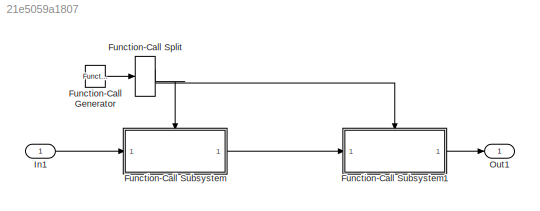
MODEL slx_21e5059a1807
KIND model
CONFIG AbsTol = auto
CONFIG EnableMultiTasking = off
CONFIG FixedStep = 0.200000
CONFIG MaxStep = auto
CONFIG MinStep = auto
CONFIG RelTol = 1e-3
CONFIG SampleTimeConstraint = Unconstrained
CONFIG Solver = FixedStepDiscrete
CONFIG SolverName = FixedStepDiscrete
CONFIG StartTime = 0.0
CONFIG StopTime = 19.8
BLOCK [Reference] Function-Call Generator  REF=simulink/Ports &
Subsystems/Function-Call
Generator
  Ports = [0, 1]
  SourceBlock = simulink/Ports &\nSubsystems/Function-Call\nGenerator
  SourceProductBaseCode = SL
  SourceProductName = Simulink
  SourceType = Function-Call Generator
BLOCK [FunctionCallSplit] Function-Call Split
  NumOutputPorts = 2
  Ports = [1, 2]
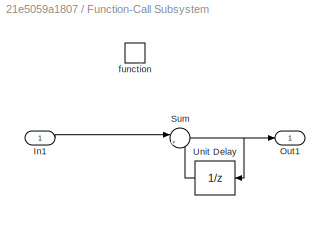
BLOCK [SubSystem] Function-Call Subsystem
  Ports = [1, 1, 0, 1]
  RequestExecContextInheritance = off
  TreatAsAtomicUnit = on
  Variant = off
BLOCK [Inport] Function-Call Subsystem/In1
  IconDisplay = Port number
BLOCK [Outport] Function-Call Subsystem/Out1
  IconDisplay = Port number
BLOCK [Sum] Function-Call Subsystem/Sum
  IconShape = round
  InputSameDT = off
  Inputs = |++
  OutDataTypeStr = Inherit: Inherit via internal rule
  Ports = [2, 1]
  SaturateOnIntegerOverflow = off
BLOCK [UnitDelay] Function-Call Subsystem/Unit Delay
  InputProcessing = Elements as channels (sample based)
  SampleTime = -1
BLOCK [TriggerPort] Function-Call Subsystem/function
  Ports = []
  StatesWhenEnabling = held
  TriggerType = function-call
  VariantControl = Variant
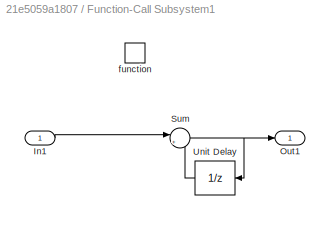
BLOCK [SubSystem] Function-Call Subsystem1
  Ports = [1, 1, 0, 1]
  RequestExecContextInheritance = off
  TreatAsAtomicUnit = on
  Variant = off
BLOCK [Inport] Function-Call Subsystem1/In1
  IconDisplay = Port number
BLOCK [Outport] Function-Call Subsystem1/Out1
  IconDisplay = Port number
BLOCK [Sum] Function-Call Subsystem1/Sum
  IconShape = round
  InputSameDT = off
  Inputs = |++
  OutDataTypeStr = Inherit: Inherit via internal rule
  Ports = [2, 1]
  SaturateOnIntegerOverflow = off
BLOCK [UnitDelay] Function-Call Subsystem1/Unit Delay
  InputProcessing = Elements as channels (sample based)
  SampleTime = -1
BLOCK [TriggerPort] Function-Call Subsystem1/function
  Ports = []
  StatesWhenEnabling = held
  TriggerType = function-call
  VariantControl = Variant
BLOCK [Inport] In1
  IconDisplay = Port number
BLOCK [Outport] Out1
  IconDisplay = Port number
LINE Function-Call Generator:1 -> Function-Call Split:1
LINE Function-Call Split:1 -> Function-Call Subsystem:trigger
LINE Function-Call Split:2 -> Function-Call Subsystem1:trigger
LINE Function-Call Subsystem/In1:1 -> Function-Call Subsystem/Sum:1
NET Function-Call Subsystem/Sum:1 -> Function-Call Subsystem/Out1:1, Function-Call Subsystem/Unit Delay:1
LINE Function-Call Subsystem/Unit Delay:1 -> Function-Call Subsystem/Sum:2
LINE Function-Call Subsystem1/In1:1 -> Function-Call Subsystem1/Sum:1
NET Function-Call Subsystem1/Sum:1 -> Function-Call Subsystem1/Out1:1, Function-Call Subsystem1/Unit Delay:1
LINE Function-Call Subsystem1/Unit Delay:1 -> Function-Call Subsystem1/Sum:2
LINE Function-Call Subsystem1:1 -> Out1:1
LINE Function-Call Subsystem:1 -> Function-Call Subsystem1:1
LINE In1:1 -> Function-Call Subsystem:1
note: NET lines group one-source signal fan-out (src -> all destinations, sorted); 1:1 wires keep LINE
